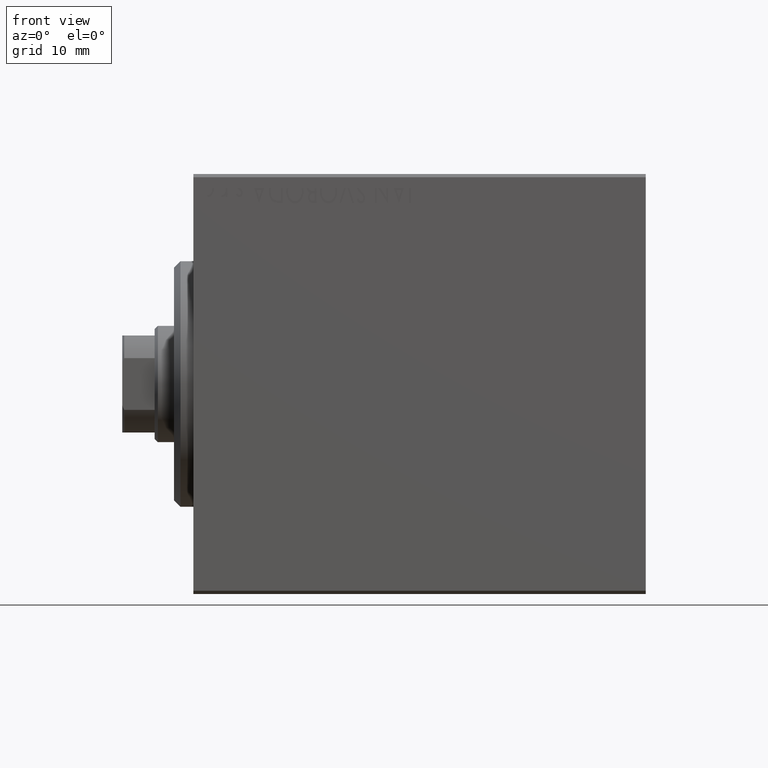
[diagram: clean part render]
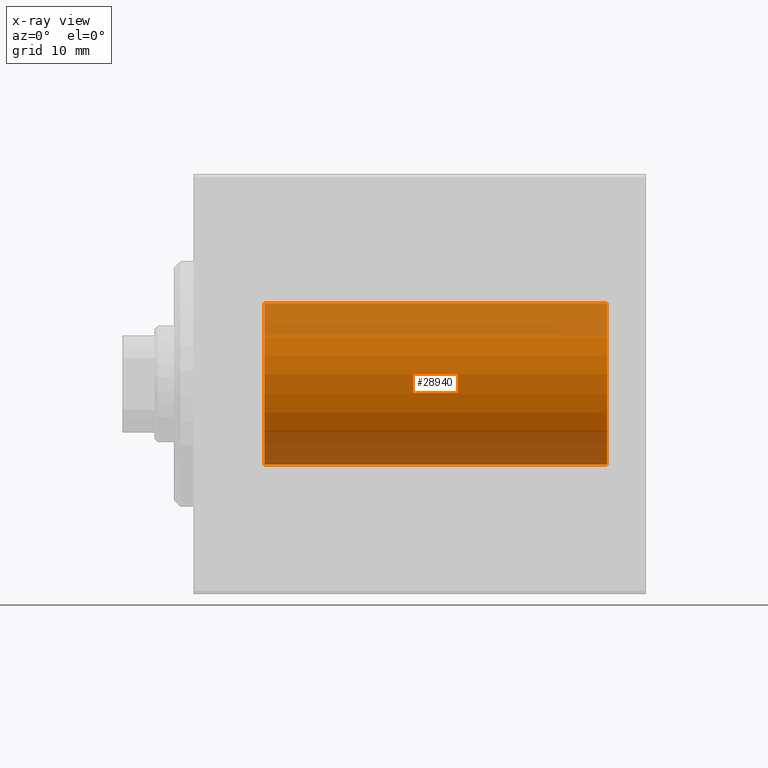
[diagram: x-ray — body ghosted, one internal face saturated and labeled with its STEP entity id]
A machine part, front view, then the same camera in x-ray: the body is ghosted and one INTERNAL B-rep face — a face not visible from any outside direction — is saturated and labeled: STEP entity #28940.
In plain terms, the highlighted cylindrical surface (partial cylindrical patch) has radius 12.5 mm, axis along (-1, -0, -0).
Its self-contained STEP definition (entity closure, byte-faithful):
#2513 = EDGE_CURVE ( 'NONE', #33970, #31168, #5488, .T. ) ;
#3135 = CARTESIAN_POINT ( 'NONE',  ( 64.00000000000000000, 0.000000000000000000, 0.000000000000000000 ) ) ;
#4125 = VECTOR ( 'NONE', #18445, 1000.000000000000000 ) ;
#4431 = LINE ( 'NONE', #20927, #40732 ) ;
#5488 = LINE ( 'NONE', #11747, #4125 ) ;
#6492 = DIRECTION ( 'NONE',  ( -1.000000000000000000, -0.000000000000000000, -0.000000000000000000 ) ) ;
#6884 = CARTESIAN_POINT ( 'NONE',  ( 10.99999999999999645, 0.000000000000000000, 12.50000000000000000 ) ) ;
#8325 = EDGE_CURVE ( 'NONE', #28029, #33970, #29830, .T. ) ;
#8384 = CARTESIAN_POINT ( 'NONE',  ( 10.99999999999999645, 1.530808498934191521E-15, -12.50000000000000000 ) ) ;
#8419 = AXIS2_PLACEMENT_3D ( 'NONE', #3135, #6492, #30558 ) ;
#8687 = EDGE_LOOP ( 'NONE', ( #24266, #18324, #30756, #29146 ) ) ;
#9831 = CYLINDRICAL_SURFACE ( 'NONE', #8419, 12.50000000000000000 ) ;
#11747 = CARTESIAN_POINT ( 'NONE',  ( 64.00000000000000000, 0.000000000000000000, 12.50000000000000000 ) ) ;
#12001 = DIRECTION ( 'NONE',  ( 0.000000000000000000, 0.000000000000000000, 1.000000000000000000 ) ) ;
#18324 = ORIENTED_EDGE ( 'NONE', *, *, #40197, .T. ) ;
#18445 = DIRECTION ( 'NONE',  ( -1.000000000000000000, -0.000000000000000000, -0.000000000000000000 ) ) ;
#18697 = CARTESIAN_POINT ( 'NONE',  ( 64.00000000000000000, 0.000000000000000000, 0.000000000000000000 ) ) ;
#19140 = AXIS2_PLACEMENT_3D ( 'NONE', #18697, #28510, #32287 ) ;
#20927 = CARTESIAN_POINT ( 'NONE',  ( 64.00000000000000000, 1.530808498934191521E-15, -12.50000000000000000 ) ) ;
#21148 = DIRECTION ( 'NONE',  ( -1.000000000000000000, -0.000000000000000000, -0.000000000000000000 ) ) ;
#21960 = AXIS2_PLACEMENT_3D ( 'NONE', #42545, #25383, #12001 ) ;
#22577 = VERTEX_POINT ( 'NONE', #8384 ) ;
#24266 = ORIENTED_EDGE ( 'NONE', *, *, #8325, .F. ) ;
#25383 = DIRECTION ( 'NONE',  ( -1.000000000000000000, 0.000000000000000000, 0.000000000000000000 ) ) ;
#26181 = EDGE_CURVE ( 'NONE', #22577, #31168, #34788, .T. ) ;
#28029 = VERTEX_POINT ( 'NONE', #33241 ) ;
#28510 = DIRECTION ( 'NONE',  ( -1.000000000000000000, 0.000000000000000000, 0.000000000000000000 ) ) ;
#28940 = ADVANCED_FACE ( 'NONE', ( #29900 ), #9831, .F. ) ;
#29146 = ORIENTED_EDGE ( 'NONE', *, *, #2513, .F. ) ;
#29830 = CIRCLE ( 'NONE', #19140, 12.50000000000000000 ) ;
#29900 = FACE_OUTER_BOUND ( 'NONE', #8687, .T. ) ;
#30558 = DIRECTION ( 'NONE',  ( 0.000000000000000000, 0.000000000000000000, 1.000000000000000000 ) ) ;
#30756 = ORIENTED_EDGE ( 'NONE', *, *, #26181, .T. ) ;
#31168 = VERTEX_POINT ( 'NONE', #6884 ) ;
#31717 = CARTESIAN_POINT ( 'NONE',  ( 64.00000000000000000, 0.000000000000000000, 12.50000000000000000 ) ) ;
#32287 = DIRECTION ( 'NONE',  ( 0.000000000000000000, 0.000000000000000000, 1.000000000000000000 ) ) ;
#33241 = CARTESIAN_POINT ( 'NONE',  ( 64.00000000000000000, 1.530808498934191521E-15, -12.50000000000000000 ) ) ;
#33970 = VERTEX_POINT ( 'NONE', #31717 ) ;
#34788 = CIRCLE ( 'NONE', #21960, 12.50000000000000000 ) ;
#40197 = EDGE_CURVE ( 'NONE', #28029, #22577, #4431, .T. ) ;
#40732 = VECTOR ( 'NONE', #21148, 1000.000000000000000 ) ;
#42545 = CARTESIAN_POINT ( 'NONE',  ( 10.99999999999999645, 0.000000000000000000, 0.000000000000000000 ) ) ;